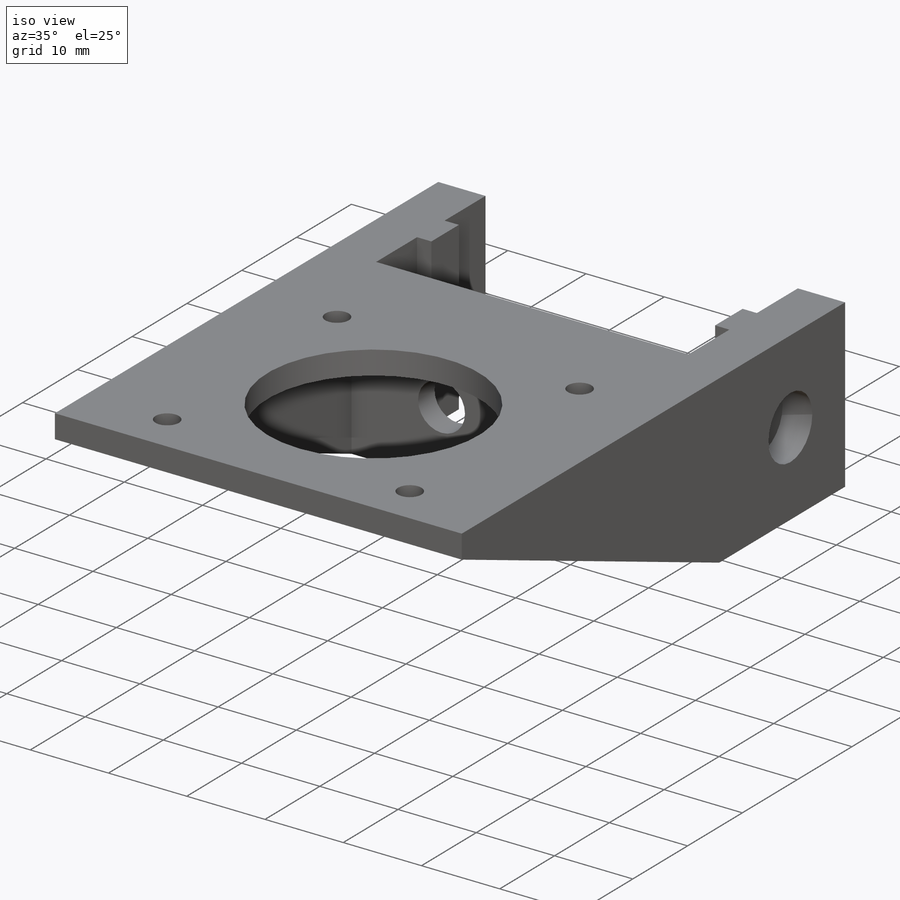
[diagram: iso view]
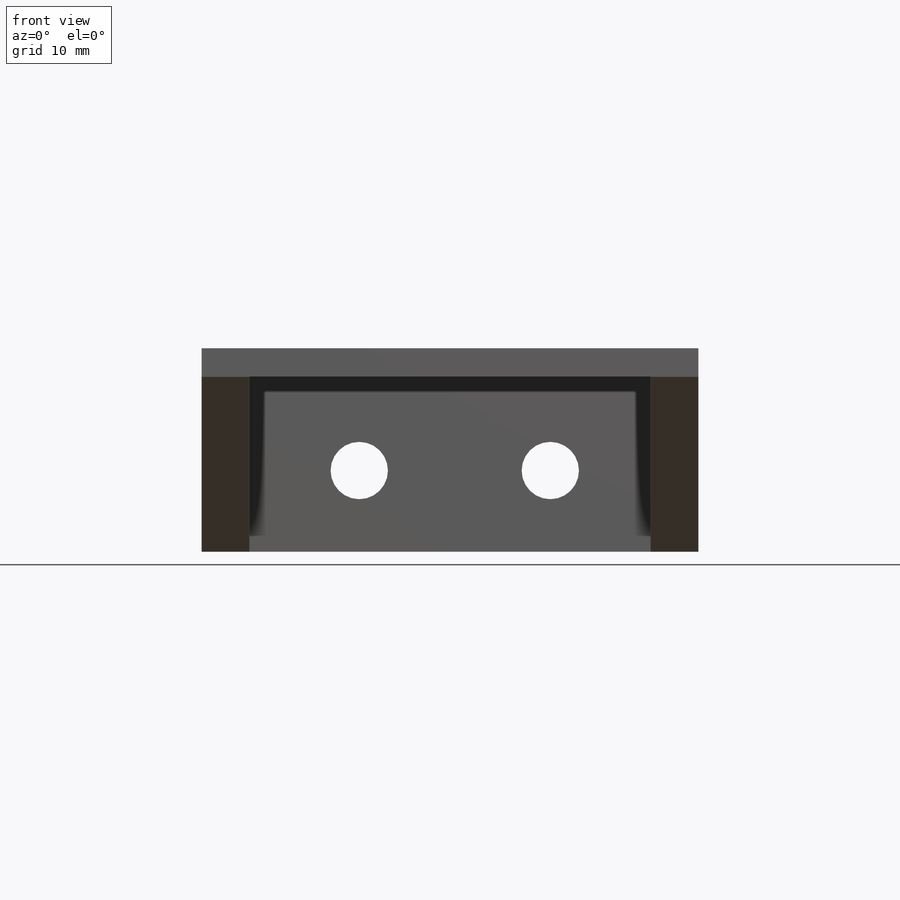
[diagram: front view]
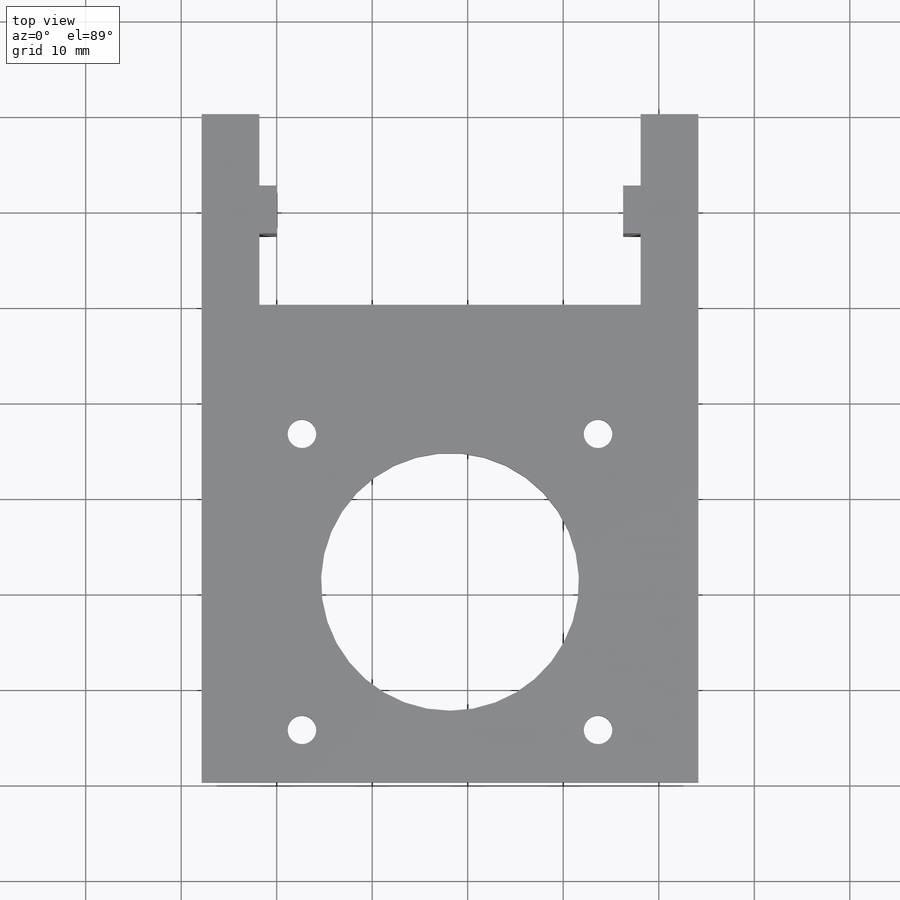
[diagram: top view]
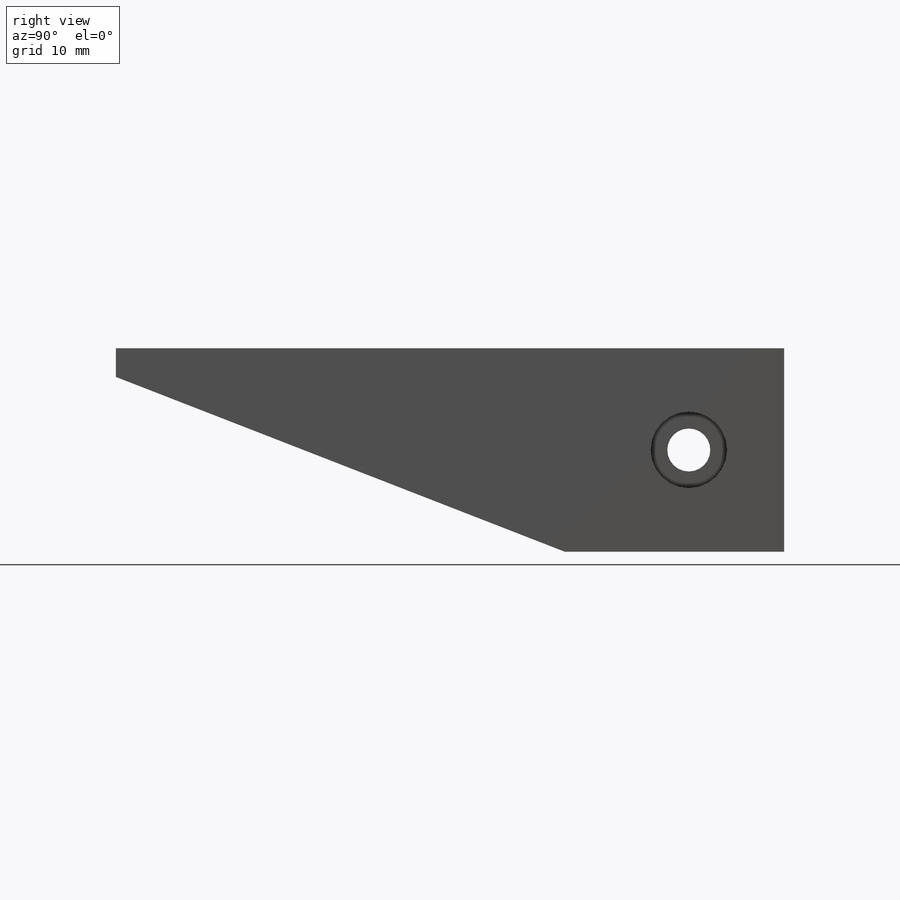
[diagram: right view]
SOLIDWORKS PART (.sldprt)
format: sldprt  version: not decoded by parser v0  size: 283,648 bytes
history: native  units: mm
features: sketch x9, extrude x6, cut_extrude x3, material x1, plane x1, mirror x1 (+12 scaffold rows collapsed)
feature tree (33):
  scaffold x12  (default folders/planes/origin — collapsed)
  material  "ABS"
  sketch  "Sketch1"  dims[D1=42.0mm D2=21.3mm]
  extrude  "Boss-Extrude1"  Depth=3mm
  sketch  "Sketch2"  dims[D2=6.0mm D1=8.5mm D3=10.5mm D4=11.5mm]
  cut_extrude  "Cut-Extrude1"  Depth=3mm
  sketch  "Sketch4"  dims[c1.D2=5.0mm c1.D7=3.0mm c1.D8=27.0mm c1.D1=50.0mm c1.D3=~5.500179mm c1.D4=15.5mm c1.D5=31.0mm c1.D6=31.0mm c2.D2=~5.499821mm]
  extrude  "Boss-Extrude2"  Depth=3mm
  sketch  "Sketch5"
  extrude  "Boss-Extrude3"  Depth=5mm
  extrude  "Boss-Extrude4"  [1 undecoded]
  sketch  "Sketch5<3>"  dims[D1=5.0mm D19=42.0mm]
  sketch  "Sketch6"  dims[D1=6.04mm D2=19.96mm]
  extrude  "Boss-Extrude5"  [1 undecoded]
  sketch  "Sketch8"
  extrude  "Boss-Extrude6"  [1 undecoded]
  sketch  "Sketch7"  dims[D1=4.5mm D2=9.98mm D3=10.65mm]
  cut_extrude  "Cut-Extrude2"  Depth=10mm
  plane  "Plane1"
  sketch  "Sketch9"  dims[D1=8.0mm]
  cut_extrude  "Cut-Extrude3"  Depth=3.8mm
  mirror  "Mirror1"
decode coverage: 13 of 19 modeling features carry decoded parameters
note: ~ marks probable driven/reference dimensions
note: 3 parameter values undecoded
summary: no parameter record found for 3 features
note: suppression state not decoded; provenance and decode notes live in map.json
